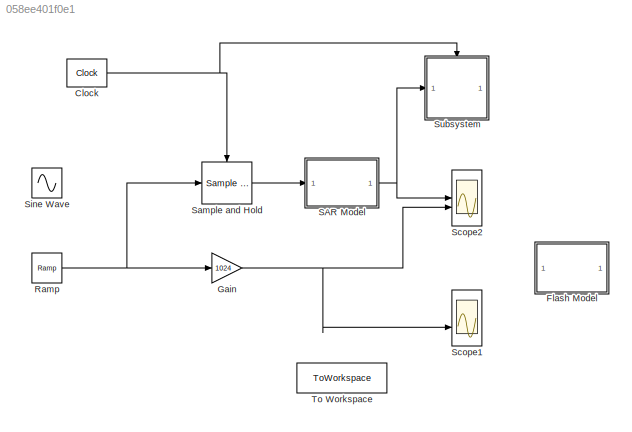
MODEL slx_058ee401f0e1
KIND model
CONFIG AbsTol = auto
CONFIG EnableMultiTasking = off
CONFIG FixedStep = auto
CONFIG MaxStep = auto
CONFIG MinStep = auto
CONFIG RelTol = 1e-3
CONFIG SampleTimeConstraint = Unconstrained
CONFIG SolverName = VariableStepAuto
CONFIG StartTime = 0.0
CONFIG StopTime = N*Ts
BLOCK [Reference] Clock  REF=simulink_extras/Flip Flops/Clock
  SourceBlock = simulink_extras/Flip Flops/Clock
  SourceType = Digital clock
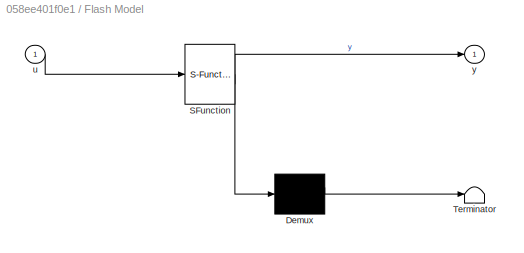
BLOCK [SubSystem] Flash Model
  ErrorFcn = Stateflow.Translate.translate
  PermitHierarchicalResolution = ExplicitOnly
  SFBlockType = MATLAB Function
  TreatAsAtomicUnit = on
BLOCK [Demux] Flash Model/ Demux 
  Outputs = 1
BLOCK [S-Function] Flash Model/ SFunction 
  EnableBusSupport = on
  FunctionName = sf_sfun
  PortCounts = [1 2]
  SFcnIsStateOwnerBlock = off
  SFunctionDeploymentMode = off
  Tag = Stateflow S-Function 2
BLOCK [Terminator] Flash Model/ Terminator 
BLOCK [Inport] Flash Model/u
BLOCK [Outport] Flash Model/y
  VectorParamsAs1DForOutWhenUnconnected = off
BLOCK [Gain] Gain
  Gain = 1024
BLOCK [Reference] Ramp  REF=simulink/Sources/Ramp
  SourceBlock = simulink/Sources/Ramp
  SourceType = Ramp
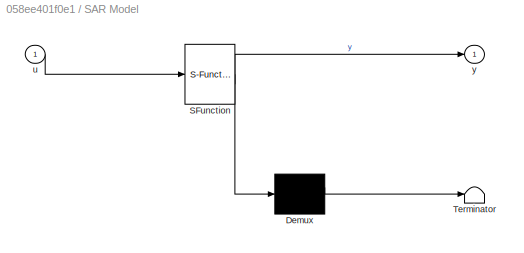
BLOCK [SubSystem] SAR Model
  ErrorFcn = Stateflow.Translate.translate
  PermitHierarchicalResolution = ExplicitOnly
  SFBlockType = MATLAB Function
  TreatAsAtomicUnit = on
BLOCK [Demux] SAR Model/ Demux 
  Outputs = 1
BLOCK [S-Function] SAR Model/ SFunction 
  EnableBusSupport = on
  FunctionName = sf_sfun
  PortCounts = [1 2]
  SFcnIsStateOwnerBlock = off
  SFunctionDeploymentMode = off
  Tag = Stateflow S-Function 1
BLOCK [Terminator] SAR Model/ Terminator 
BLOCK [Inport] SAR Model/u
BLOCK [Outport] SAR Model/y
  VectorParamsAs1DForOutWhenUnconnected = off
BLOCK [Reference] Sample and Hold  REF=dspsigops/Sample
and Hold
  SourceBlock = dspsigops/Sample\nand Hold
  SourceType = Sample and Hold
BLOCK [Scope] Scope1
  Floating = off
  NumInputPorts = 2
  ScopeSpecificationString = Simulink.scopes.TimeScopeBlockCfg('CurrentConfiguration', extmgr.ConfigurationSet(extmgr.Configuration('Core','General UI',true),extmgr.Configuration('Core','Source UI',true),extmgr.Configuration('Sources','WiredSimulink',true,'DataLoggingVariableName','ScopeData1'),extmgr.Configuration('Visuals','Time Domain',true,'SerializedDisplays',{struct('MinYLimReal','-128.00000','MaxYLimReal','1152.00000',...<+1487ch>
BLOCK [Scope] Scope2
  Floating = off
  NumInputPorts = 2
  ScopeSpecificationString = Simulink.scopes.TimeScopeBlockCfg('CurrentConfiguration', extmgr.ConfigurationSet(extmgr.Configuration('Core','General UI',true),extmgr.Configuration('Core','Source UI',true),extmgr.Configuration('Sources','WiredSimulink',true,'DataLoggingVariableName','TF_p1_0','DataLogging',true,'DataLoggingSaveFormat','StructureWithTime'),extmgr.Configuration('Visuals','Time Domain',true,'SerializedDisplays',{s...<+1642ch>
BLOCK [Sin] Sine Wave
  Amplitude = ampl
  Bias = offset
  Frequency = 2*pi*fi
  SampleTime = 0
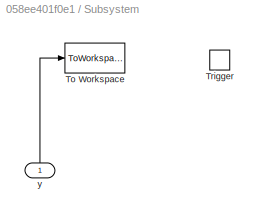
BLOCK [SubSystem] Subsystem
BLOCK [ToWorkspace] Subsystem/To Workspace
  FixptAsFi = on
  MaxDataPoints = inf
  SampleTime = -1
  Save2DSignal = 2-D array (concatenate along first dimension)
  VariableName = simout
BLOCK [TriggerPort] Subsystem/Trigger
  PortDimensions = 1
  StatesWhenEnabling = held
  VariantControl = Variant
BLOCK [Inport] Subsystem/y
  NameLocation = right
BLOCK [ToWorkspace] To Workspace
  FixptAsFi = on
  MaxDataPoints = inf
  SampleTime = -1
  Save2DSignal = 2-D array (concatenate along first dimension)
  VariableName = Ramp
NET Clock:1 -> Sample and Hold:trigger, Subsystem:trigger
NET Gain:1 -> Scope1:2, Scope2:2
NET Ramp:1 -> Gain:1, Sample and Hold:1
NET SAR Model:1 -> Scope2:1, Subsystem:1
LINE Sample and Hold:1 -> SAR Model:1
LINE Subsystem/y:1 -> Subsystem/To Workspace:1
note: NET lines group one-source signal fan-out (src -> all destinations, sorted); 1:1 wires keep LINE
CHART Flash Model states=1 transitions=1
  STATE_LABEL 'eML_blk_kernel()'
  STATE_LABEL "SCRIPT:\nfunction y = fcn(u)\nvin=u;\n\nNbit=10;                        %%Number of bits.\n\nLSB=1/2^Nbit;                   %%LSB size (considers Vp=1 and Vn=0).\nrladder=[1:1:2^Nbit-1]*LSB;     %%%Reference voltage generation.\nvout=ones(1,2^Nbit-1);          %%%Formal initialisation of vout variable.  \n\np=0.0/100;                      %%percentage of mismatch\nrandn('seed', 31233);           %% Uses a f...<+519ch>"
CHART SAR Model states=1 transitions=1
  STATE_LABEL 'eML_blk_kernel()'
  STATE_LABEL "SCRIPT:\nfunction y = fcn(u)\nvin=u;\n\nNbit=10;                    %%%Number of bits \n\nVcdac = 1./2.^[1:1:Nbit];   %%Voltage vector from CDAC.\n \nvx = -vin;                  %%%Models bottom plate sampling\n\nsar=ones(1,Nbit);           %%%Fromal initialization of variable\n\n% PART (i) Capacitor mismatch\ncap_p = 1/100;\n% randn('seed', 31233);\nrandn('seed', 12945);\nmismatch = randn(1,Nbit)*cap_p;\n\nVcdac =...<+521ch>"
CHART  states=0 transitions=0
CHART  states=0 transitions=0
